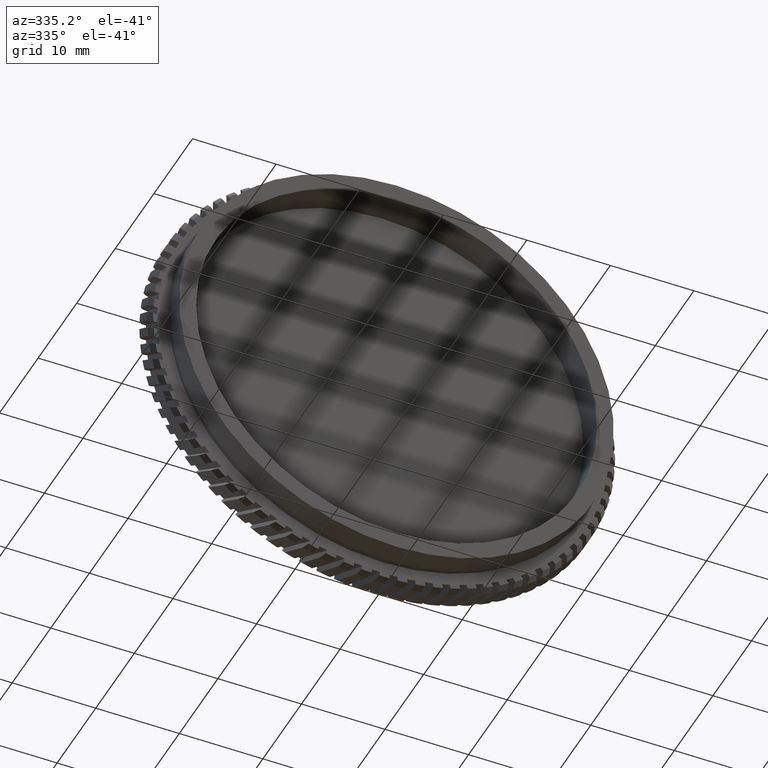
[diagram: clean part render]
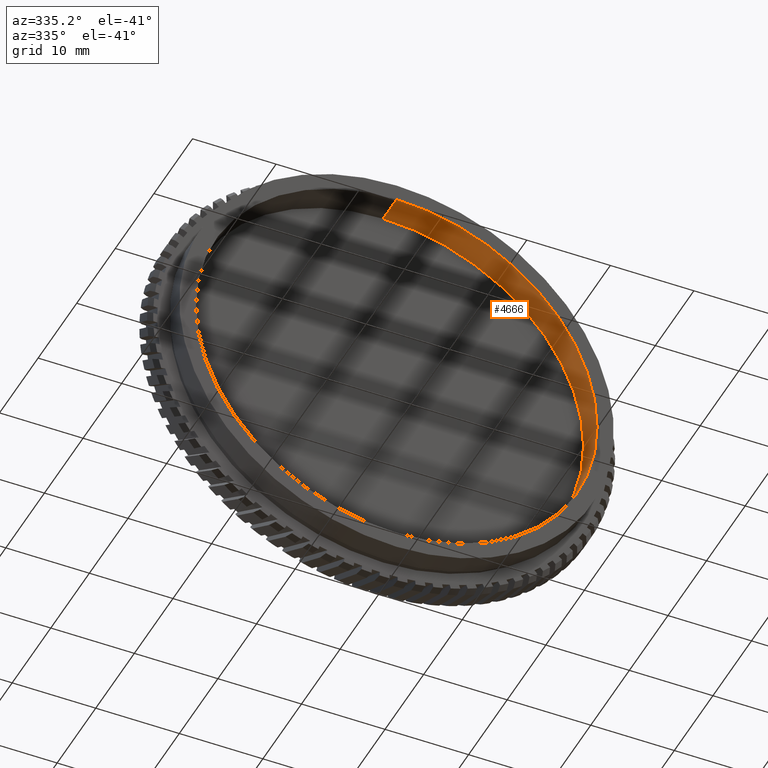
[diagram: same view with one face highlighted and labeled with its STEP entity id]
A machine part, auxiliary view. The second image highlights one B-rep face of the part: STEP entity #4666.
In plain terms, the highlighted cylindrical surface (partial cylindrical patch) has radius 24 mm, axis along (-0, 1, -0).
Its self-contained STEP definition (entity closure, byte-faithful):
#356 = DIRECTION ( 'NONE',  ( -0.0000000000000000000, 1.000000000000000000, -0.0000000000000000000 ) ) ;
#1172 = CARTESIAN_POINT ( 'NONE',  ( 2.939152317953648700E-015, 66.62876213592232900, -24.00000000000000700 ) ) ;
#1198 = VECTOR ( 'NONE', #2978, 1000.000000000000000 ) ;
#1472 = CARTESIAN_POINT ( 'NONE',  ( 0.0000000000000000000, 66.62876213592232900, 24.00000000000000700 ) ) ;
#2794 = CARTESIAN_POINT ( 'NONE',  ( 2.939152317953648700E-015, 18.87125740523061500, -24.00000000000000700 ) ) ;
#2978 = DIRECTION ( 'NONE',  ( -0.0000000000000000000, 1.000000000000000000, -0.0000000000000000000 ) ) ;
#3088 = ORIENTED_EDGE ( 'NONE', *, *, #16843, .T. ) ;
#3482 = CARTESIAN_POINT ( 'NONE',  ( 0.0000000000000000000, 15.37125740523061900, 0.0000000000000000000 ) ) ;
#3698 = CARTESIAN_POINT ( 'NONE',  ( 2.939152317953648700E-015, 15.37125740523061900, -24.00000000000000700 ) ) ;
#3746 = DIRECTION ( 'NONE',  ( -0.0000000000000000000, 1.000000000000000000, -0.0000000000000000000 ) ) ;
#3764 = AXIS2_PLACEMENT_3D ( 'NONE', #6688, #356, #8412 ) ;
#3822 = AXIS2_PLACEMENT_3D ( 'NONE', #3482, #3746, #13130 ) ;
#3950 = EDGE_LOOP ( 'NONE', ( #15513, #11684, #3088, #3964 ) ) ;
#3961 = CARTESIAN_POINT ( 'NONE',  ( 0.0000000000000000000, 66.62876213592232900, 0.0000000000000000000 ) ) ;
#3964 = ORIENTED_EDGE ( 'NONE', *, *, #16125, .T. ) ;
#4666 = ADVANCED_FACE ( 'NONE', ( #20140 ), #11912, .F. ) ;
#5398 = CARTESIAN_POINT ( 'NONE',  ( 0.0000000000000000000, 15.37125740523061900, 24.00000000000000700 ) ) ;
#5494 = VERTEX_POINT ( 'NONE', #3698 ) ;
#5809 = EDGE_CURVE ( 'NONE', #18916, #5494, #10197, .T. ) ;
#5996 = EDGE_CURVE ( 'NONE', #5494, #12098, #14800, .T. ) ;
#6688 = CARTESIAN_POINT ( 'NONE',  ( 0.0000000000000000000, 18.87125740523061500, 0.0000000000000000000 ) ) ;
#7068 = CIRCLE ( 'NONE', #3764, 24.00000000000000700 ) ;
#8412 = DIRECTION ( 'NONE',  ( 0.0000000000000000000, 0.0000000000000000000, 1.000000000000000000 ) ) ;
#9686 = VECTOR ( 'NONE', #15285, 1000.000000000000000 ) ;
#10197 = CIRCLE ( 'NONE', #3822, 24.00000000000000700 ) ;
#10518 = LINE ( 'NONE', #1472, #1198 ) ;
#11684 = ORIENTED_EDGE ( 'NONE', *, *, #5809, .F. ) ;
#11912 = CYLINDRICAL_SURFACE ( 'NONE', #14148, 24.00000000000000700 ) ;
#12098 = VERTEX_POINT ( 'NONE', #2794 ) ;
#13130 = DIRECTION ( 'NONE',  ( 0.0000000000000000000, 0.0000000000000000000, 1.000000000000000000 ) ) ;
#13580 = VERTEX_POINT ( 'NONE', #14105 ) ;
#14105 = CARTESIAN_POINT ( 'NONE',  ( 0.0000000000000000000, 18.87125740523061500, 24.00000000000000700 ) ) ;
#14148 = AXIS2_PLACEMENT_3D ( 'NONE', #3961, #18149, #16519 ) ;
#14800 = LINE ( 'NONE', #1172, #9686 ) ;
#15285 = DIRECTION ( 'NONE',  ( -0.0000000000000000000, 1.000000000000000000, -0.0000000000000000000 ) ) ;
#15513 = ORIENTED_EDGE ( 'NONE', *, *, #5996, .F. ) ;
#16125 = EDGE_CURVE ( 'NONE', #13580, #12098, #7068, .T. ) ;
#16519 = DIRECTION ( 'NONE',  ( 0.0000000000000000000, 0.0000000000000000000, 1.000000000000000000 ) ) ;
#16843 = EDGE_CURVE ( 'NONE', #18916, #13580, #10518, .T. ) ;
#18149 = DIRECTION ( 'NONE',  ( -0.0000000000000000000, 1.000000000000000000, -0.0000000000000000000 ) ) ;
#18916 = VERTEX_POINT ( 'NONE', #5398 ) ;
#20140 = FACE_OUTER_BOUND ( 'NONE', #3950, .T. ) ;